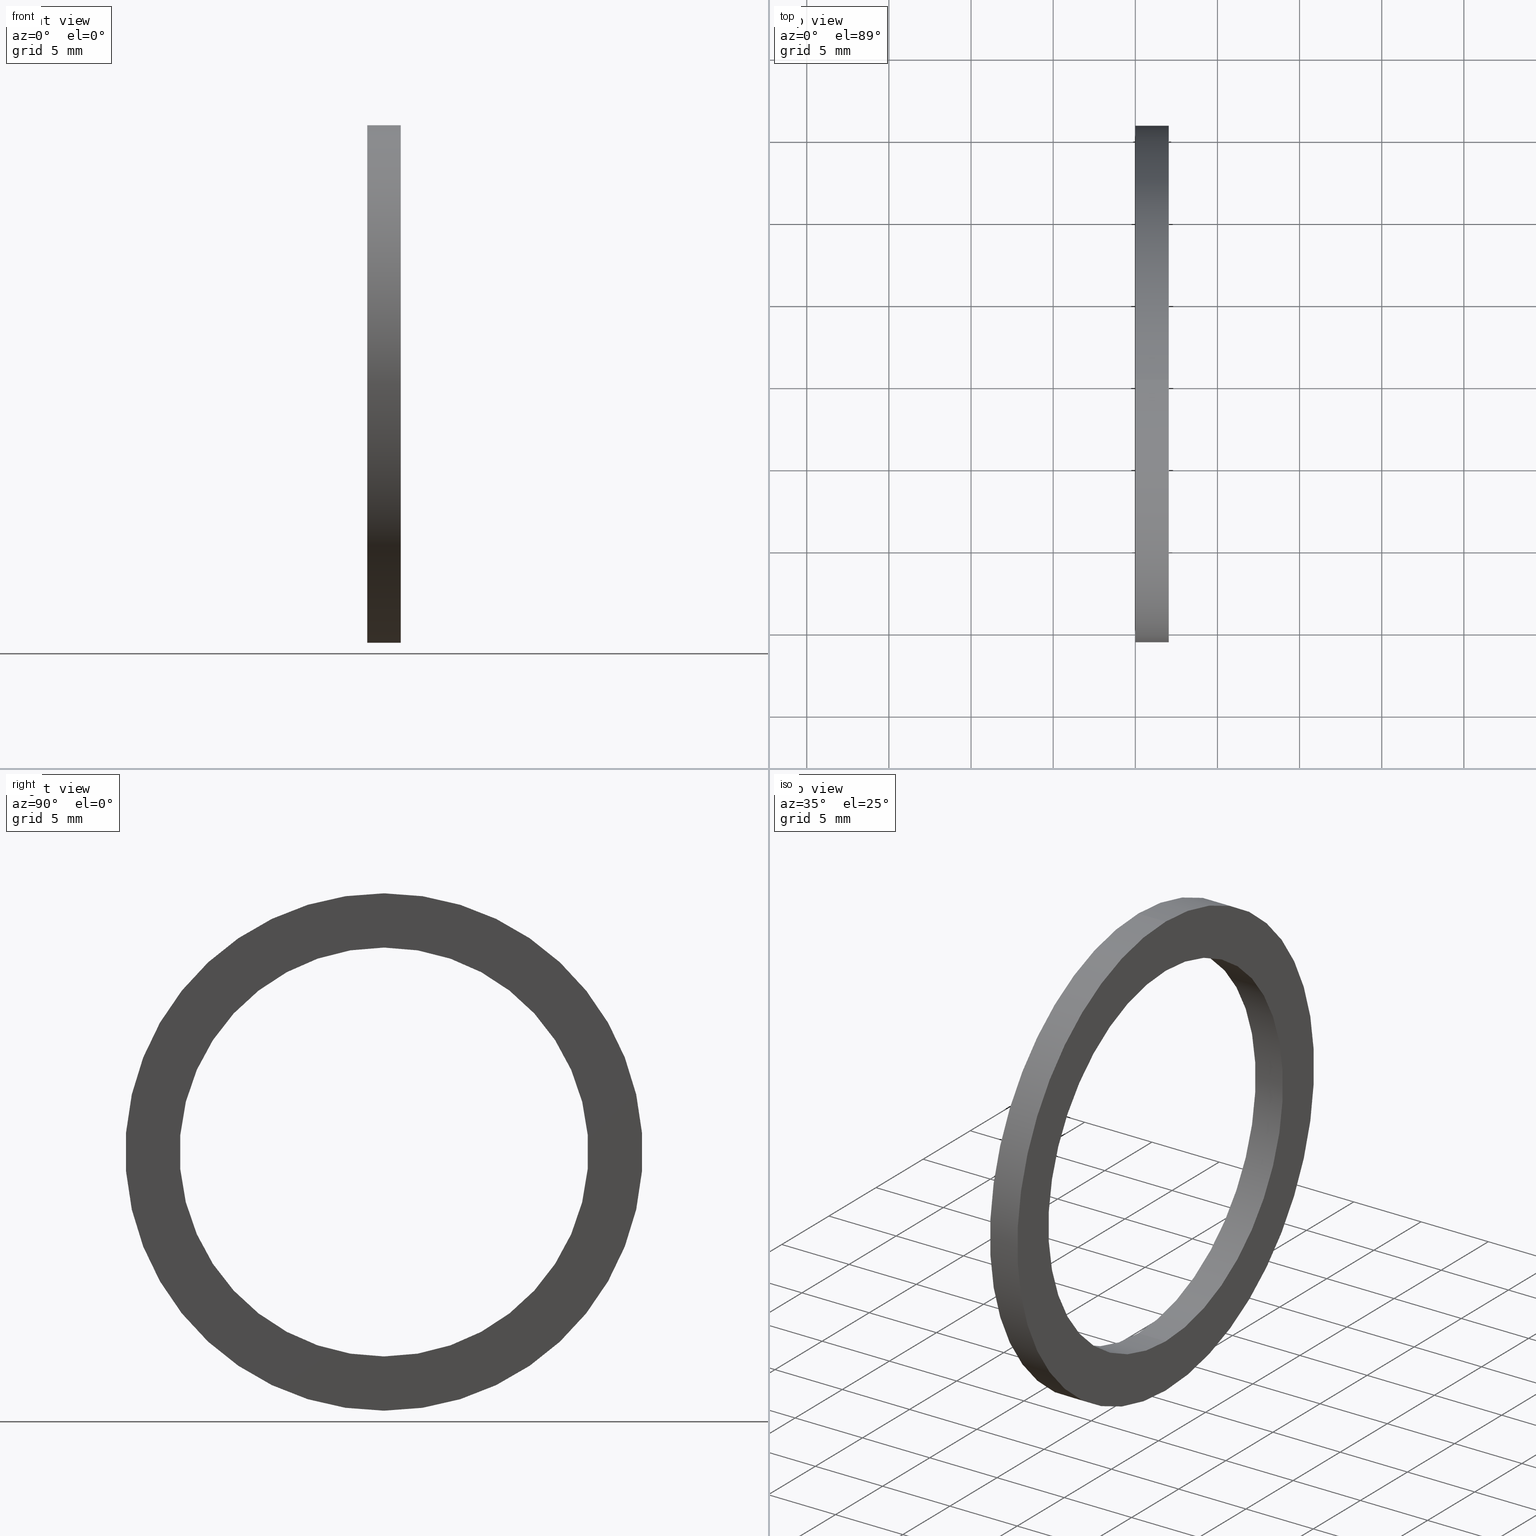
[diagram: canonical four-view strip — front | top / right | iso, engineering-drawing reading convention]
A machine part, canonical four-view strip (front | top / right | iso — engineering-drawing reading convention). The complete STEP part file that produces these views, byte-faithful:
ISO-10303-21;
HEADER;
FILE_DESCRIPTION (( 'STEP AP203' ),
    '1' );
FILE_NAME ('SM-25-VT.STEP',
    '2008-06-25T05:47:08',
    ( 'BSI05' ),
    ( 'BAYSTATE' ),
    'SwSTEP 2.0',
    'SolidWorks 2007',
    '' );
FILE_SCHEMA (( 'CONFIG_CONTROL_DESIGN' ));
ENDSEC;

DATA;
#1 = ADVANCED_FACE ( 'NONE', ( #39 ), #36, .T. ) ;
#2 = EDGE_LOOP ( 'NONE', ( #3, #229, #232, #235 ) ) ;
#3 = ORIENTED_EDGE ( 'NONE', *, *, #226, .T. ) ;
#4 = ORIENTED_EDGE ( 'NONE', *, *, #5, .T. ) ;
#5 = EDGE_CURVE ( 'NONE', #228, #227, #65, .T. ) ;
#6 = EDGE_LOOP ( 'NONE', ( #7, #4, #23, #24 ) ) ;
#7 = ORIENTED_EDGE ( 'NONE', *, *, #230, .F. ) ;
#8 = ADVANCED_FACE ( 'NONE', ( #66 ), #59, .T. ) ;
#9 = EDGE_CURVE ( 'NONE', #250, #247, #47, .T. ) ;
#10 = EDGE_LOOP ( 'NONE', ( #11, #12 ) ) ;
#11 = ORIENTED_EDGE ( 'NONE', *, *, #9, .F. ) ;
#12 = ORIENTED_EDGE ( 'NONE', *, *, #249, .F. ) ;
#13 = ORIENTED_EDGE ( 'NONE', *, *, #233, .T. ) ;
#14 = EDGE_CURVE ( 'NONE', #231, #234, #56, .T. ) ;
#15 = ORIENTED_EDGE ( 'NONE', *, *, #14, .T. ) ;
#16 = EDGE_LOOP ( 'NONE', ( #17, #18 ) ) ;
#17 = ORIENTED_EDGE ( 'NONE', *, *, #226, .F. ) ;
#18 = ORIENTED_EDGE ( 'NONE', *, *, #5, .F. ) ;
#19 = ADVANCED_FACE ( 'NONE', ( #57 ), #32, .F. ) ;
#20 = EDGE_LOOP ( 'NONE', ( #21, #33, #37, #38 ) ) ;
#21 = ORIENTED_EDGE ( 'NONE', *, *, #246, .F. ) ;
#22 = CLOSED_SHELL ( 'NONE', ( #239, #1, #237, #8, #25, #19 ) ) ;
#23 = ORIENTED_EDGE ( 'NONE', *, *, #236, .T. ) ;
#24 = ORIENTED_EDGE ( 'NONE', *, *, #14, .F. ) ;
#25 = ADVANCED_FACE ( 'NONE', ( #73, #77 ), #78, .T. ) ;
#26 = EDGE_LOOP ( 'NONE', ( #27, #29 ) ) ;
#27 = ORIENTED_EDGE ( 'NONE', *, *, #28, .T. ) ;
#28 = EDGE_CURVE ( 'NONE', #244, #243, #71, .T. ) ;
#29 = ORIENTED_EDGE ( 'NONE', *, *, #242, .T. ) ;
#30 = EDGE_LOOP ( 'NONE', ( #13, #15 ) ) ;
#31 = AXIS2_PLACEMENT_3D ( 'NONE', #52, #80, #67 ) ;
#32 = CYLINDRICAL_SURFACE ( 'NONE', #31, 0.4899999999999999900 ) ;
#33 = ORIENTED_EDGE ( 'NONE', *, *, #28, .F. ) ;
#34 = LENGTH_MEASURE_WITH_UNIT ( LENGTH_MEASURE( 0.02539999999999999900 ), #121 );
#35 = DIMENSIONAL_EXPONENTS ( 1.000000000000000000, 0.0000000000000000000, 0.0000000000000000000, 0.0000000000000000000, 0.0000000000000000000, 0.0000000000000000000, 0.0000000000000000000 ) ;
#36 = CYLINDRICAL_SURFACE ( 'NONE', #42, 0.6200000000000000000 ) ;
#37 = ORIENTED_EDGE ( 'NONE', *, *, #252, .T. ) ;
#38 = ORIENTED_EDGE ( 'NONE', *, *, #9, .T. ) ;
#39 = FACE_OUTER_BOUND ( 'NONE', #2, .T. ) ;
#40 = DIRECTION ( 'NONE',  ( -1.000000000000000000, 0.0000000000000000000, 0.0000000000000000000 ) ) ;
#41 = CARTESIAN_POINT ( 'NONE',  ( -1.721125226614714300, 0.0000000000000000000, 0.0000000000000000000 ) ) ;
#42 = AXIS2_PLACEMENT_3D ( 'NONE', #41, #40, #58 ) ;
#43 = DIRECTION ( 'NONE',  ( 0.0000000000000000000, 0.0000000000000000000, 1.000000000000000000 ) ) ;
#44 = DIRECTION ( 'NONE',  ( -1.000000000000000000, 0.0000000000000000000, 0.0000000000000000000 ) ) ;
#45 = CARTESIAN_POINT ( 'NONE',  ( 0.0000000000000000000, 0.0000000000000000000, 0.0000000000000000000 ) ) ;
#46 = AXIS2_PLACEMENT_3D ( 'NONE', #45, #44, #43 ) ;
#47 = CIRCLE ( 'NONE', #46, 0.4899999999999999900 ) ;
#48 = CARTESIAN_POINT ( 'NONE',  ( 0.0000000000000000000, 0.0000000000000000000, 0.0000000000000000000 ) ) ;
#49 = DIRECTION ( 'NONE',  ( 0.0000000000000000000, 0.0000000000000000000, 1.000000000000000000 ) ) ;
#50 = DIRECTION ( 'NONE',  ( -1.000000000000000000, 0.0000000000000000000, 0.0000000000000000000 ) ) ;
#51 = AXIS2_PLACEMENT_3D ( 'NONE', #60, #50, #49 ) ;
#52 = CARTESIAN_POINT ( 'NONE',  ( -1.721125226614714300, 0.0000000000000000000, 0.0000000000000000000 ) ) ;
#53 = DIRECTION ( 'NONE',  ( 0.0000000000000000000, 0.0000000000000000000, 1.000000000000000000 ) ) ;
#54 = DIRECTION ( 'NONE',  ( -1.000000000000000000, 0.0000000000000000000, 0.0000000000000000000 ) ) ;
#55 = AXIS2_PLACEMENT_3D ( 'NONE', #48, #54, #53 ) ;
#56 = CIRCLE ( 'NONE', #55, 0.6200000000000000000 ) ;
#57 = FACE_OUTER_BOUND ( 'NONE', #20, .T. ) ;
#58 = DIRECTION ( 'NONE',  ( 0.0000000000000000000, 0.0000000000000000000, 1.000000000000000000 ) ) ;
#59 = CYLINDRICAL_SURFACE ( 'NONE', #51, 0.6200000000000000000 ) ;
#60 = CARTESIAN_POINT ( 'NONE',  ( -1.721125226614714300, 0.0000000000000000000, 0.0000000000000000000 ) ) ;
#61 = DIRECTION ( 'NONE',  ( 0.0000000000000000000, 0.0000000000000000000, 1.000000000000000000 ) ) ;
#62 = DIRECTION ( 'NONE',  ( -1.000000000000000000, 0.0000000000000000000, 0.0000000000000000000 ) ) ;
#63 = CARTESIAN_POINT ( 'NONE',  ( 0.07999999999999996000, 0.0000000000000000000, 0.0000000000000000000 ) ) ;
#64 = AXIS2_PLACEMENT_3D ( 'NONE', #63, #62, #61 ) ;
#65 = CIRCLE ( 'NONE', #64, 0.6200000000000000000 ) ;
#66 = FACE_OUTER_BOUND ( 'NONE', #6, .T. ) ;
#67 = DIRECTION ( 'NONE',  ( 0.0000000000000000000, 0.0000000000000000000, 1.000000000000000000 ) ) ;
#68 = DIRECTION ( 'NONE',  ( 0.0000000000000000000, 0.0000000000000000000, 1.000000000000000000 ) ) ;
#69 = DIRECTION ( 'NONE',  ( -1.000000000000000000, 0.0000000000000000000, 0.0000000000000000000 ) ) ;
#70 = AXIS2_PLACEMENT_3D ( 'NONE', #75, #69, #68 ) ;
#71 = CIRCLE ( 'NONE', #70, 0.4899999999999999900 ) ;
#72 = CARTESIAN_POINT ( 'NONE',  ( 0.08000000000000002900, -0.4899999999999999900, 0.0000000000000000000 ) ) ;
#73 = FACE_BOUND ( 'NONE', #26, .T. ) ;
#74 = AXIS2_PLACEMENT_3D ( 'NONE', #72, #79, #76 ) ;
#75 = CARTESIAN_POINT ( 'NONE',  ( 0.07999999999999996000, 0.0000000000000000000, 0.0000000000000000000 ) ) ;
#76 = DIRECTION ( 'NONE',  ( 0.0000000000000000000, 0.0000000000000000000, -1.000000000000000000 ) ) ;
#77 = FACE_OUTER_BOUND ( 'NONE', #16, .T. ) ;
#78 = PLANE ( 'NONE',  #74 ) ;
#79 = DIRECTION ( 'NONE',  ( 1.000000000000000000, 0.0000000000000000000, 0.0000000000000000000 ) ) ;
#80 = DIRECTION ( 'NONE',  ( -1.000000000000000000, 0.0000000000000000000, 0.0000000000000000000 ) ) ;
#81 =( CONVERSION_BASED_UNIT ( 'INCH', #34 ) LENGTH_UNIT ( ) NAMED_UNIT ( #35 ) );
#82 = CARTESIAN_POINT ( 'NONE',  ( 0.07999999999999996000, 0.0000000000000000000, 0.0000000000000000000 ) ) ;
#83 =( NAMED_UNIT ( * ) PLANE_ANGLE_UNIT ( ) SI_UNIT ( $, .RADIAN. ) );
#84 = DIRECTION ( 'NONE',  ( -1.000000000000000000, 0.0000000000000000000, 0.0000000000000000000 ) ) ;
#85 = DIRECTION ( 'NONE',  ( 0.0000000000000000000, 0.0000000000000000000, 1.000000000000000000 ) ) ;
#86 =( NAMED_UNIT ( * ) SI_UNIT ( $, .STERADIAN. ) SOLID_ANGLE_UNIT ( ) );
#87 = AXIS2_PLACEMENT_3D ( 'NONE', #82, #84, #85 ) ;
#88 = CIRCLE ( 'NONE', #87, 0.6200000000000000000 ) ;
#89 = PRODUCT_DEFINITION ( 'UNKNOWN', '', #184, #157 ) ;
#90 = UNCERTAINTY_MEASURE_WITH_UNIT (LENGTH_MEASURE( 1.000000000000000100E-005 ), #81, 'distance_accuracy_value', 'NONE');
#91 = COORDINATED_UNIVERSAL_TIME_OFFSET ( 5, 30, .AHEAD. ) ;
#92 = APPROVAL_PERSON_ORGANIZATION ( #95, #100, #99 ) ;
#93 =( GEOMETRIC_REPRESENTATION_CONTEXT ( 3 ) GLOBAL_UNCERTAINTY_ASSIGNED_CONTEXT ( ( #90 ) ) GLOBAL_UNIT_ASSIGNED_CONTEXT ( ( #81, #83, #86 ) ) REPRESENTATION_CONTEXT ( 'NONE', 'WORKASPACE' ) );
#94 = APPROVAL_STATUS ( 'not_yet_approved' ) ;
#95 = PERSON_AND_ORGANIZATION ( #175, #174 ) ;
#96 = ADVANCED_BREP_SHAPE_REPRESENTATION ( 'SM-25-VT', ( #238, #155 ), #93 ) ;
#97 = CALENDAR_DATE ( 2008, 25, 6 ) ;
#98 = LOCAL_TIME ( 11, 17, 8.000000000000000000, #91 ) ;
#99 = APPROVAL_ROLE ( '' ) ;
#100 = APPROVAL ( #94, 'UNSPECIFIED' ) ;
#101 = CARTESIAN_POINT ( 'NONE',  ( 0.0000000000000000000, 7.592810154713589100E-017, -0.6200000000000000000 ) ) ;
#102 = DIRECTION ( 'NONE',  ( -1.000000000000000000, 0.0000000000000000000, 0.0000000000000000000 ) ) ;
#103 = DIRECTION ( 'NONE',  ( -1.000000000000000000, 0.0000000000000000000, 0.0000000000000000000 ) ) ;
#104 = AXIS2_PLACEMENT_3D ( 'NONE', #126, #103, #132 ) ;
#105 = CIRCLE ( 'NONE', #104, 0.4899999999999999900 ) ;
#106 = VECTOR ( 'NONE', #152, 39.37007874015748100 ) ;
#107 = CIRCLE ( 'NONE', #149, 0.4899999999999999900 ) ;
#108 = CYLINDRICAL_SURFACE ( 'NONE', #137, 0.4899999999999999900 ) ;
#109 = LINE ( 'NONE', #153, #106 ) ;
#110 = CARTESIAN_POINT ( 'NONE',  ( -1.721125226614714300, 0.0000000000000000000, 0.6200000000000000000 ) ) ;
#111 = LINE ( 'NONE', #110, #142 ) ;
#112 = DIRECTION ( 'NONE',  ( 0.0000000000000000000, 0.0000000000000000000, 1.000000000000000000 ) ) ;
#113 = DIRECTION ( 'NONE',  ( -1.000000000000000000, 0.0000000000000000000, 0.0000000000000000000 ) ) ;
#114 = CARTESIAN_POINT ( 'NONE',  ( 3.918740332231607200E-017, -0.4899999999999999900, 0.0000000000000000000 ) ) ;
#115 = AXIS2_PLACEMENT_3D ( 'NONE', #114, #113, #112 ) ;
#116 = LINE ( 'NONE', #124, #123 ) ;
#117 = CARTESIAN_POINT ( 'NONE',  ( 0.0000000000000000000, 0.0000000000000000000, 0.4899999999999999900 ) ) ;
#118 = DIRECTION ( 'NONE',  ( 0.0000000000000000000, 0.0000000000000000000, 1.000000000000000000 ) ) ;
#119 = DIRECTION ( 'NONE',  ( -1.000000000000000000, 0.0000000000000000000, 0.0000000000000000000 ) ) ;
#120 = CARTESIAN_POINT ( 'NONE',  ( 0.0000000000000000000, 0.0000000000000000000, 0.0000000000000000000 ) ) ;
#121 =( LENGTH_UNIT ( ) NAMED_UNIT ( * ) SI_UNIT ( $, .METRE. ) );
#122 = DIRECTION ( 'NONE',  ( -1.000000000000000000, 0.0000000000000000000, 0.0000000000000000000 ) ) ;
#123 = VECTOR ( 'NONE', #122, 39.37007874015748100 ) ;
#124 = CARTESIAN_POINT ( 'NONE',  ( -1.721125226614714300, 0.0000000000000000000, 0.4899999999999999900 ) ) ;
#125 = DIRECTION ( 'NONE',  ( 0.0000000000000000000, 0.0000000000000000000, 1.000000000000000000 ) ) ;
#126 = CARTESIAN_POINT ( 'NONE',  ( 0.07999999999999996000, 0.0000000000000000000, 0.0000000000000000000 ) ) ;
#127 = DIRECTION ( 'NONE',  ( 0.0000000000000000000, 0.0000000000000000000, 1.000000000000000000 ) ) ;
#128 = DIRECTION ( 'NONE',  ( -1.000000000000000000, 0.0000000000000000000, 0.0000000000000000000 ) ) ;
#129 = CARTESIAN_POINT ( 'NONE',  ( -1.721125226614714300, 0.0000000000000000000, 0.0000000000000000000 ) ) ;
#130 = CARTESIAN_POINT ( 'NONE',  ( 0.07999999999999996000, 0.0000000000000000000, 0.4899999999999999900 ) ) ;
#131 = CARTESIAN_POINT ( 'NONE',  ( 0.07999999999999996000, 6.000769315822029800E-017, -0.4899999999999999900 ) ) ;
#132 = DIRECTION ( 'NONE',  ( 0.0000000000000000000, 0.0000000000000000000, 1.000000000000000000 ) ) ;
#133 = PLANE ( 'NONE',  #115 ) ;
#134 = FACE_OUTER_BOUND ( 'NONE', #240, .T. ) ;
#135 = FACE_BOUND ( 'NONE', #10, .T. ) ;
#136 = CIRCLE ( 'NONE', #148, 0.6200000000000000000 ) ;
#137 = AXIS2_PLACEMENT_3D ( 'NONE', #129, #128, #127 ) ;
#138 = CARTESIAN_POINT ( 'NONE',  ( 0.07999999999999996000, 7.592810154713589100E-017, -0.6200000000000000000 ) ) ;
#139 = CARTESIAN_POINT ( 'NONE',  ( 0.0000000000000000000, 0.0000000000000000000, 0.6200000000000000000 ) ) ;
#140 = FACE_OUTER_BOUND ( 'NONE', #30, .T. ) ;
#141 = DIRECTION ( 'NONE',  ( -1.000000000000000000, 0.0000000000000000000, 0.0000000000000000000 ) ) ;
#142 = VECTOR ( 'NONE', #141, 39.37007874015748100 ) ;
#143 = CARTESIAN_POINT ( 'NONE',  ( 0.07999999999999996000, 0.0000000000000000000, 0.6200000000000000000 ) ) ;
#144 = VECTOR ( 'NONE', #151, 39.37007874015748100 ) ;
#145 = CARTESIAN_POINT ( 'NONE',  ( -1.721125226614714300, 6.000769315822029800E-017, -0.4899999999999999900 ) ) ;
#146 = LINE ( 'NONE', #145, #144 ) ;
#147 = CARTESIAN_POINT ( 'NONE',  ( 0.0000000000000000000, 0.0000000000000000000, 0.0000000000000000000 ) ) ;
#148 = AXIS2_PLACEMENT_3D ( 'NONE', #147, #102, #125 ) ;
#149 = AXIS2_PLACEMENT_3D ( 'NONE', #120, #119, #118 ) ;
#150 = CARTESIAN_POINT ( 'NONE',  ( 0.0000000000000000000, 6.000769315822029800E-017, -0.4899999999999999900 ) ) ;
#151 = DIRECTION ( 'NONE',  ( -1.000000000000000000, 0.0000000000000000000, 0.0000000000000000000 ) ) ;
#152 = DIRECTION ( 'NONE',  ( -1.000000000000000000, 0.0000000000000000000, 0.0000000000000000000 ) ) ;
#153 = CARTESIAN_POINT ( 'NONE',  ( -1.721125226614714300, 7.592810154713589100E-017, -0.6200000000000000000 ) ) ;
#154 = APPLICATION_PROTOCOL_DEFINITION ( 'international standard', 'config_control_design', 1994, #160 ) ;
#155 = AXIS2_PLACEMENT_3D ( 'NONE', #158, #159, #156 ) ;
#156 = DIRECTION ( 'NONE',  ( 1.000000000000000000, 0.0000000000000000000, 0.0000000000000000000 ) ) ;
#157 = DESIGN_CONTEXT ( 'detailed design', #160, 'design' ) ;
#158 = CARTESIAN_POINT ( 'NONE',  ( 0.0000000000000000000, 0.0000000000000000000, 0.0000000000000000000 ) ) ;
#159 = DIRECTION ( 'NONE',  ( 0.0000000000000000000, 0.0000000000000000000, 1.000000000000000000 ) ) ;
#160 = APPLICATION_CONTEXT ( 'configuration controlled 3d designs of mechanical parts and assemblies' ) ;
#161 = APPROVAL_DATE_TIME ( #164, #100 ) ;
#162 = CC_DESIGN_APPROVAL ( #100, ( #89 ) ) ;
#163 = PERSON_AND_ORGANIZATION ( #175, #174 ) ;
#164 = DATE_AND_TIME ( #97, #98 ) ;
#165 = CC_DESIGN_PERSON_AND_ORGANIZATION_ASSIGNMENT ( #163, #166, ( #89 ) ) ;
#166 = PERSON_AND_ORGANIZATION_ROLE ( 'creator' ) ;
#167 = LOCAL_TIME ( 11, 17, 8.000000000000000000, #168 ) ;
#168 = COORDINATED_UNIVERSAL_TIME_OFFSET ( 5, 30, .AHEAD. ) ;
#169 = DATE_AND_TIME ( #170, #167 ) ;
#170 = CALENDAR_DATE ( 2008, 25, 6 ) ;
#171 = CC_DESIGN_PERSON_AND_ORGANIZATION_ASSIGNMENT ( #173, #172, ( #176 ) ) ;
#172 = PERSON_AND_ORGANIZATION_ROLE ( 'design_owner' ) ;
#173 = PERSON_AND_ORGANIZATION ( #175, #174 ) ;
#174 = ORGANIZATION ( 'UNSPECIFIED', 'UNSPECIFIED', '' ) ;
#175 = PERSON ( 'UNSPECIFIED', 'UNSPECIFIED', 'UNSPECIFIED', ('UNSPECIFIED'), ('UNSPECIFIED'), ('UNSPECIFIED') ) ;
#176 = PRODUCT ( 'SM-25-VT', 'SM-25-VT', '', ( #177 ) ) ;
#177 = MECHANICAL_CONTEXT ( 'NONE', #179, 'mechanical' ) ;
#178 = APPLICATION_PROTOCOL_DEFINITION ( 'international standard', 'config_control_design', 1994, #179 ) ;
#179 = APPLICATION_CONTEXT ( 'configuration controlled 3d designs of mechanical parts and assemblies' ) ;
#180 = DATE_TIME_ROLE ( 'creation_date' ) ;
#181 = PERSON_AND_ORGANIZATION ( #175, #174 ) ;
#182 = CC_DESIGN_APPROVAL ( #183, ( #184 ) ) ;
#183 = APPROVAL ( #224, 'UNSPECIFIED' ) ;
#184 = PRODUCT_DEFINITION_FORMATION_WITH_SPECIFIED_SOURCE ( 'ANY', '', #176, .NOT_KNOWN. ) ;
#185 = SECURITY_CLASSIFICATION ( '', '', #225 ) ;
#186 = CC_DESIGN_PERSON_AND_ORGANIZATION_ASSIGNMENT ( #181, #206, ( #184 ) ) ;
#187 = CC_DESIGN_DATE_AND_TIME_ASSIGNMENT ( #169, #180, ( #89 ) ) ;
#188 = CC_DESIGN_DATE_AND_TIME_ASSIGNMENT ( #212, #189, ( #185 ) ) ;
#189 = DATE_TIME_ROLE ( 'classification_date' ) ;
#190 = CALENDAR_DATE ( 2008, 25, 6 ) ;
#191 = LOCAL_TIME ( 11, 17, 8.000000000000000000, #213 ) ;
#192 = DATE_AND_TIME ( #193, #215 ) ;
#193 = CALENDAR_DATE ( 2008, 25, 6 ) ;
#194 = PRODUCT_DEFINITION_SHAPE ( 'NONE', 'NONE',  #89 ) ;
#195 = PRODUCT_RELATED_PRODUCT_CATEGORY ( 'detail', '', ( #176 ) ) ;
#196 = CC_DESIGN_APPROVAL ( #204, ( #185 ) ) ;
#197 = APPROVAL_DATE_TIME ( #198, #204 ) ;
#198 = DATE_AND_TIME ( #199, #200 ) ;
#199 = CALENDAR_DATE ( 2008, 25, 6 ) ;
#200 = LOCAL_TIME ( 11, 17, 8.000000000000000000, #201 ) ;
#201 = COORDINATED_UNIVERSAL_TIME_OFFSET ( 5, 30, .AHEAD. ) ;
#202 = APPROVAL_PERSON_ORGANIZATION ( #221, #204, #203 ) ;
#203 = APPROVAL_ROLE ( '' ) ;
#204 = APPROVAL ( #205, 'UNSPECIFIED' ) ;
#205 = APPROVAL_STATUS ( 'not_yet_approved' ) ;
#206 = PERSON_AND_ORGANIZATION_ROLE ( 'design_supplier' ) ;
#207 = CC_DESIGN_PERSON_AND_ORGANIZATION_ASSIGNMENT ( #209, #208, ( #184 ) ) ;
#208 = PERSON_AND_ORGANIZATION_ROLE ( 'creator' ) ;
#209 = PERSON_AND_ORGANIZATION ( #175, #174 ) ;
#210 = CC_DESIGN_SECURITY_CLASSIFICATION ( #185, ( #184 ) ) ;
#211 = PERSON_AND_ORGANIZATION ( #175, #174 ) ;
#212 = DATE_AND_TIME ( #190, #191 ) ;
#213 = COORDINATED_UNIVERSAL_TIME_OFFSET ( 5, 30, .AHEAD. ) ;
#214 = APPROVAL_DATE_TIME ( #192, #183 ) ;
#215 = LOCAL_TIME ( 11, 17, 8.000000000000000000, #217 ) ;
#216 = SHAPE_DEFINITION_REPRESENTATION ( #194, #96 ) ;
#217 = COORDINATED_UNIVERSAL_TIME_OFFSET ( 5, 30, .AHEAD. ) ;
#218 = CC_DESIGN_PERSON_AND_ORGANIZATION_ASSIGNMENT ( #220, #219, ( #185 ) ) ;
#219 = PERSON_AND_ORGANIZATION_ROLE ( 'classification_officer' ) ;
#220 = PERSON_AND_ORGANIZATION ( #175, #174 ) ;
#221 = PERSON_AND_ORGANIZATION ( #175, #174 ) ;
#222 = APPROVAL_PERSON_ORGANIZATION ( #211, #183, #223 ) ;
#223 = APPROVAL_ROLE ( '' ) ;
#224 = APPROVAL_STATUS ( 'not_yet_approved' ) ;
#225 = SECURITY_CLASSIFICATION_LEVEL ( 'unclassified' ) ;
#226 = EDGE_CURVE ( 'NONE', #227, #228, #88, .T. ) ;
#227 = VERTEX_POINT ( 'NONE', #143 ) ;
#228 = VERTEX_POINT ( 'NONE', #138 ) ;
#229 = ORIENTED_EDGE ( 'NONE', *, *, #230, .T. ) ;
#230 = EDGE_CURVE ( 'NONE', #228, #231, #109, .T. ) ;
#231 = VERTEX_POINT ( 'NONE', #101 ) ;
#232 = ORIENTED_EDGE ( 'NONE', *, *, #233, .F. ) ;
#233 = EDGE_CURVE ( 'NONE', #234, #231, #136, .T. ) ;
#234 = VERTEX_POINT ( 'NONE', #139 ) ;
#235 = ORIENTED_EDGE ( 'NONE', *, *, #236, .F. ) ;
#236 = EDGE_CURVE ( 'NONE', #227, #234, #111, .T. ) ;
#237 = ADVANCED_FACE ( 'NONE', ( #140, #135 ), #133, .T. ) ;
#238 = MANIFOLD_SOLID_BREP ( 'NONE', #22 ) ;
#239 = ADVANCED_FACE ( 'NONE', ( #134 ), #108, .F. ) ;
#240 = EDGE_LOOP ( 'NONE', ( #241, #245, #248, #251 ) ) ;
#241 = ORIENTED_EDGE ( 'NONE', *, *, #242, .F. ) ;
#242 = EDGE_CURVE ( 'NONE', #243, #244, #105, .T. ) ;
#243 = VERTEX_POINT ( 'NONE', #131 ) ;
#244 = VERTEX_POINT ( 'NONE', #130 ) ;
#245 = ORIENTED_EDGE ( 'NONE', *, *, #246, .T. ) ;
#246 = EDGE_CURVE ( 'NONE', #243, #247, #146, .T. ) ;
#247 = VERTEX_POINT ( 'NONE', #150 ) ;
#248 = ORIENTED_EDGE ( 'NONE', *, *, #249, .T. ) ;
#249 = EDGE_CURVE ( 'NONE', #247, #250, #107, .T. ) ;
#250 = VERTEX_POINT ( 'NONE', #117 ) ;
#251 = ORIENTED_EDGE ( 'NONE', *, *, #252, .F. ) ;
#252 = EDGE_CURVE ( 'NONE', #244, #250, #116, .T. ) ;
ENDSEC;
END-ISO-10303-21;
